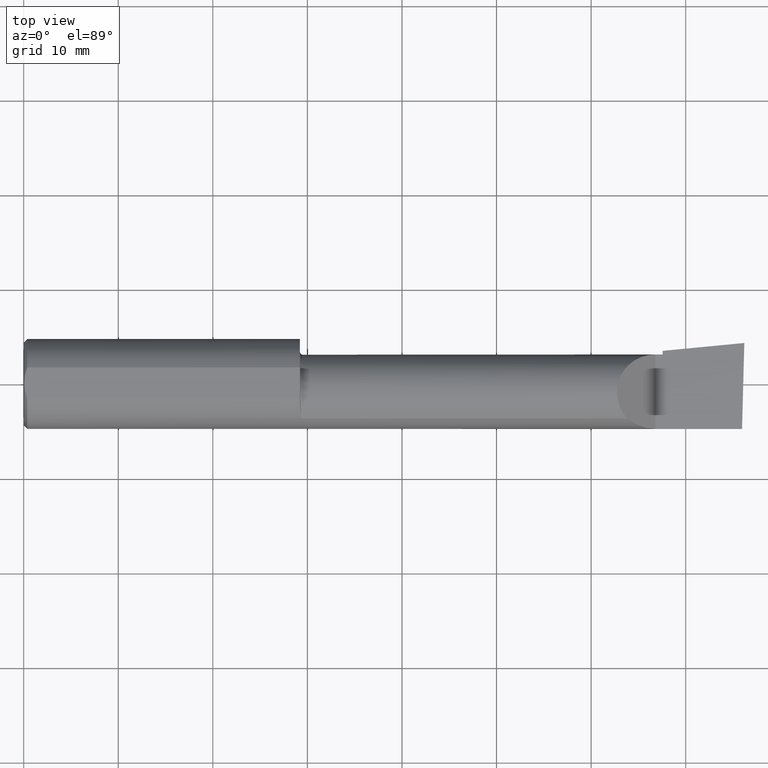
[diagram: clean part render]
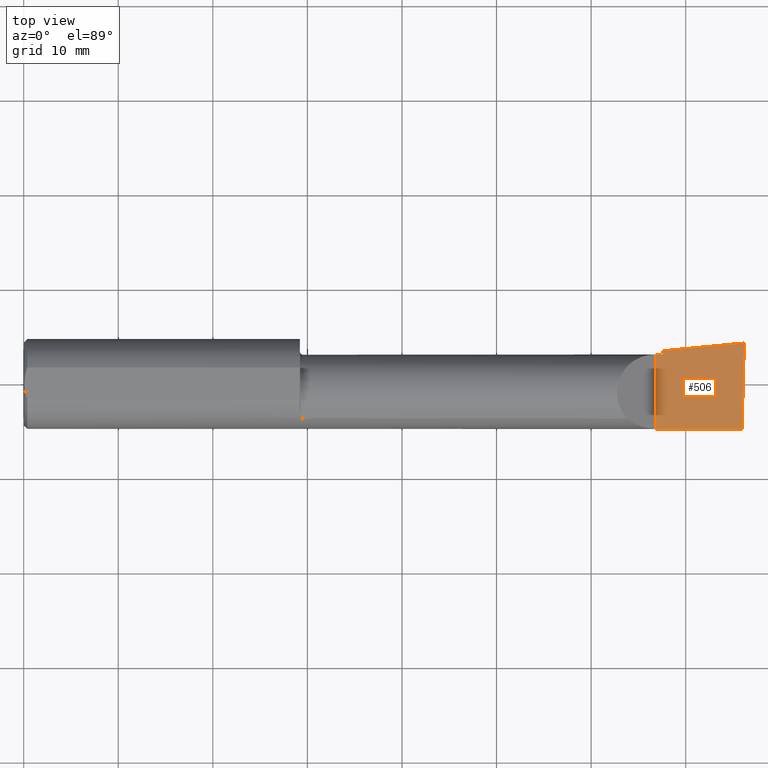
[diagram: same view with one face highlighted and labeled with its STEP entity id]
A machine part, top view. The second image highlights one B-rep face of the part: STEP entity #506.
In plain terms, the highlighted planar face has unit normal (-0, 0, -1).
Its self-contained STEP definition (entity closure, byte-faithful):
#18 = CARTESIAN_POINT ( 'NONE',  ( 2.629999999999999893, -0.2500000000000000555, -1.592040838891560883E-17 ) ) ;
#22 = DIRECTION ( 'NONE',  ( -1.415561931153809475E-16, 0.000000000000000000, -1.000000000000000000 ) ) ;
#65 = VECTOR ( 'NONE', #80, 39.37007874015748143 ) ;
#72 = FACE_OUTER_BOUND ( 'NONE', #512, .T. ) ;
#73 = CARTESIAN_POINT ( 'NONE',  ( 3.000000000000015543, 0.1706500000000299999, 9.286389026041013029E-14 ) ) ;
#80 = DIRECTION ( 'NONE',  ( 0.9953961983671787417, 0.09584575252022456415, -1.409044964823803883E-16 ) ) ;
#106 = ORIENTED_EDGE ( 'NONE', *, *, #553, .F. ) ;
#146 = DIRECTION ( 'NONE',  ( -1.000000000000000000, -0.000000000000000000, -0.000000000000000000 ) ) ;
#168 = VERTEX_POINT ( 'NONE', #73 ) ;
#169 = DIRECTION ( 'NONE',  ( -0.000000000000000000, 1.000000000000000000, -0.000000000000000000 ) ) ;
#173 = PLANE ( 'NONE',  #340 ) ;
#176 = ORIENTED_EDGE ( 'NONE', *, *, #323, .F. ) ;
#181 = DIRECTION ( 'NONE',  ( 0.02617694830787068924, 0.9996573249755572599, -3.650474420803454266E-18 ) ) ;
#204 = VERTEX_POINT ( 'NONE', #407 ) ;
#206 = VECTOR ( 'NONE', #169, 39.37007874015748143 ) ;
#217 = LINE ( 'NONE', #18, #206 ) ;
#234 = EDGE_CURVE ( 'NONE', #360, #383, #473, .T. ) ;
#250 = CARTESIAN_POINT ( 'NONE',  ( 2.659999999999999698, 0.1226500000000000368, 3.563723795045366070E-16 ) ) ;
#253 = CARTESIAN_POINT ( 'NONE',  ( 2.659999999999999698, 0.1379117236128416524, 3.521522804332839197E-16 ) ) ;
#254 = VECTOR ( 'NONE', #426, 39.37007874015748143 ) ;
#259 = LINE ( 'NONE', #461, #520 ) ;
#267 = CARTESIAN_POINT ( 'NONE',  ( 3.000000000000000444, -0.2500000000000000555, -6.829619984160658046E-17 ) ) ;
#293 = CARTESIAN_POINT ( 'NONE',  ( 2.629999999999999893, 0.1226499999999998147, -1.592040838891560883E-17 ) ) ;
#299 = EDGE_CURVE ( 'NONE', #383, #479, #325, .T. ) ;
#322 = DIRECTION ( 'NONE',  ( 5.691349986800549142E-18, 1.000000000000000000, -8.056458378187594471E-34 ) ) ;
#323 = EDGE_CURVE ( 'NONE', #334, #204, #576, .T. ) ;
#325 = LINE ( 'NONE', #373, #596 ) ;
#334 = VERTEX_POINT ( 'NONE', #537 ) ;
#340 = AXIS2_PLACEMENT_3D ( 'NONE', #267, #22, #500 ) ;
#360 = VERTEX_POINT ( 'NONE', #293 ) ;
#373 = CARTESIAN_POINT ( 'NONE',  ( 2.659999999999999698, -0.2500000000000000555, -2.016709418237695393E-17 ) ) ;
#376 = ORIENTED_EDGE ( 'NONE', *, *, #627, .F. ) ;
#383 = VERTEX_POINT ( 'NONE', #250 ) ;
#407 = CARTESIAN_POINT ( 'NONE',  ( 2.629999999999999893, -0.1873499999999999888, -1.592040838891560883E-17 ) ) ;
#419 = CARTESIAN_POINT ( 'NONE',  ( 5.044671737413194975E-32, -0.1873499999999999610, 3.563723795045361633E-16 ) ) ;
#426 = DIRECTION ( 'NONE',  ( 1.000000000000000000, -5.691349986800549142E-18, 0.000000000000000000 ) ) ;
#461 = CARTESIAN_POINT ( 'NONE',  ( 2.988992440003207296, -0.2497117568972559154, -6.673801155297142441E-17 ) ) ;
#473 = LINE ( 'NONE', #620, #254 ) ;
#479 = VERTEX_POINT ( 'NONE', #253 ) ;
#500 = DIRECTION ( 'NONE',  ( -1.000000000000000000, 0.000000000000000000, 1.415561931153809475E-16 ) ) ;
#506 = ADVANCED_FACE ( 'NONE', ( #72 ), #173, .F. ) ;
#512 = EDGE_LOOP ( 'NONE', ( #176, #566, #376, #591, #554, #106 ) ) ;
#520 = VECTOR ( 'NONE', #181, 39.37007874015748854 ) ;
#537 = CARTESIAN_POINT ( 'NONE',  ( 2.990625440078235275, -0.1873499999999999888, -6.696573958807120429E-17 ) ) ;
#553 = EDGE_CURVE ( 'NONE', #204, #360, #217, .T. ) ;
#554 = ORIENTED_EDGE ( 'NONE', *, *, #234, .F. ) ;
#558 = CARTESIAN_POINT ( 'NONE',  ( 0.8393181374772692438, -0.03739999999999999575, 2.375616991505620205E-16 ) ) ;
#566 = ORIENTED_EDGE ( 'NONE', *, *, #595, .T. ) ;
#576 = LINE ( 'NONE', #419, #609 ) ;
#591 = ORIENTED_EDGE ( 'NONE', *, *, #299, .F. ) ;
#595 = EDGE_CURVE ( 'NONE', #334, #168, #259, .T. ) ;
#596 = VECTOR ( 'NONE', #322, 39.37007874015748143 ) ;
#602 = LINE ( 'NONE', #558, #65 ) ;
#609 = VECTOR ( 'NONE', #146, 39.37007874015748143 ) ;
#620 = CARTESIAN_POINT ( 'NONE',  ( 9.109005653874777379E-19, 0.1226499999999998841, 3.563723795045361633E-16 ) ) ;
#627 = EDGE_CURVE ( 'NONE', #479, #168, #602, .T. ) ;